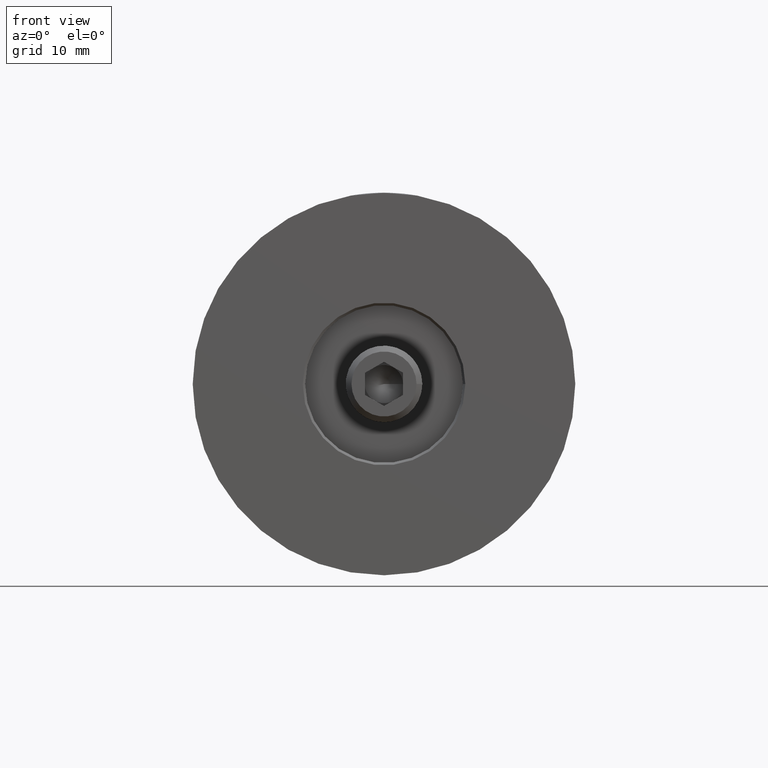
[diagram: clean part render]
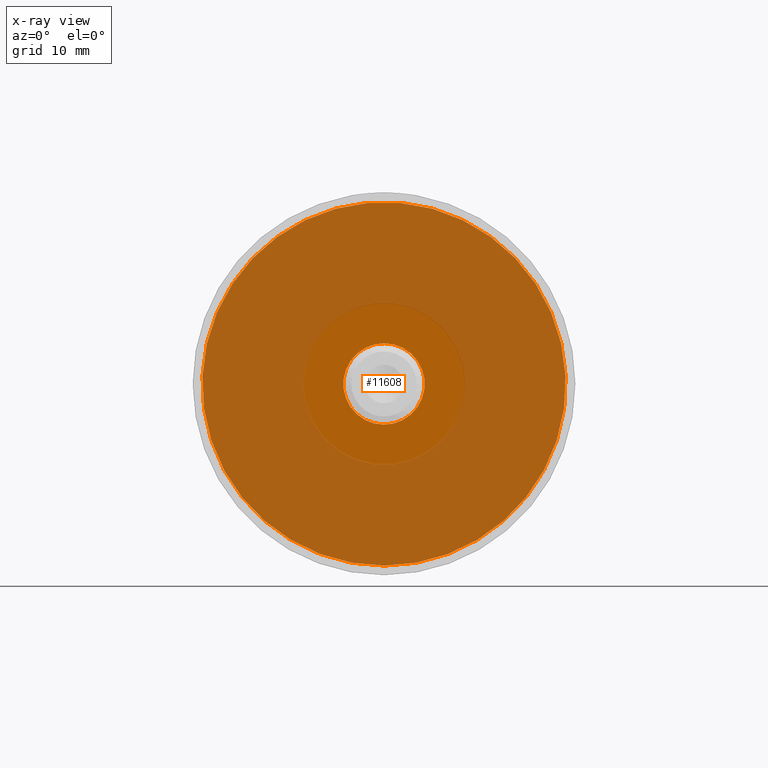
[diagram: x-ray — body ghosted, one internal face saturated and labeled with its STEP entity id]
A machine part, front view, then the same camera in x-ray: the body is ghosted and one INTERNAL B-rep face — a face not visible from any outside direction — is saturated and labeled: STEP entity #11608.
In plain terms, the highlighted planar face has unit normal (0, -1, 0).
Its self-contained STEP definition (entity closure, byte-faithful):
#73 = PLANE ( 'NONE',  #4718 ) ;
#346 = DIRECTION ( 'NONE',  ( 0.000000000000000000, 0.000000000000000000, -1.000000000000000000 ) ) ;
#2217 = CARTESIAN_POINT ( 'NONE',  ( 0.000000000000000000, 0.000000000000000000, -4.250000000000000000 ) ) ;
#3696 = DIRECTION ( 'NONE',  ( -0.000000000000000000, -1.000000000000000000, -0.000000000000000000 ) ) ;
#3745 = DIRECTION ( 'NONE',  ( 0.000000000000000000, 0.000000000000000000, -1.000000000000000000 ) ) ;
#4718 = AXIS2_PLACEMENT_3D ( 'NONE', #4737, #11743, #7073 ) ;
#4737 = CARTESIAN_POINT ( 'NONE',  ( 0.000000000000000000, 0.000000000000000000, 0.000000000000000000 ) ) ;
#5088 = DIRECTION ( 'NONE',  ( -0.000000000000000000, -1.000000000000000000, -0.000000000000000000 ) ) ;
#5215 = FACE_BOUND ( 'NONE', #7865, .T. ) ;
#5527 = CARTESIAN_POINT ( 'NONE',  ( 0.000000000000000000, 0.000000000000000000, -19.00000000000000000 ) ) ;
#5819 = AXIS2_PLACEMENT_3D ( 'NONE', #9562, #3696, #3745 ) ;
#6637 = AXIS2_PLACEMENT_3D ( 'NONE', #14352, #5088, #346 ) ;
#7073 = DIRECTION ( 'NONE',  ( 0.000000000000000000, 0.000000000000000000, -1.000000000000000000 ) ) ;
#7245 = CIRCLE ( 'NONE', #6637, 19.00000000000000000 ) ;
#7814 = EDGE_CURVE ( 'NONE', #12433, #12433, #7245, .T. ) ;
#7865 = EDGE_LOOP ( 'NONE', ( #9500 ) ) ;
#9500 = ORIENTED_EDGE ( 'NONE', *, *, #13539, .F. ) ;
#9562 = CARTESIAN_POINT ( 'NONE',  ( 0.000000000000000000, 0.000000000000000000, 0.000000000000000000 ) ) ;
#11608 = ADVANCED_FACE ( 'NONE', ( #5215, #13388 ), #73, .T. ) ;
#11743 = DIRECTION ( 'NONE',  ( 0.000000000000000000, -1.000000000000000000, -0.000000000000000000 ) ) ;
#11910 = CIRCLE ( 'NONE', #5819, 4.250000000000000000 ) ;
#12433 = VERTEX_POINT ( 'NONE', #5527 ) ;
#13388 = FACE_OUTER_BOUND ( 'NONE', #14038, .T. ) ;
#13539 = EDGE_CURVE ( 'NONE', #14031, #14031, #11910, .T. ) ;
#14031 = VERTEX_POINT ( 'NONE', #2217 ) ;
#14038 = EDGE_LOOP ( 'NONE', ( #14608 ) ) ;
#14352 = CARTESIAN_POINT ( 'NONE',  ( 0.000000000000000000, 0.000000000000000000, 0.000000000000000000 ) ) ;
#14608 = ORIENTED_EDGE ( 'NONE', *, *, #7814, .T. ) ;